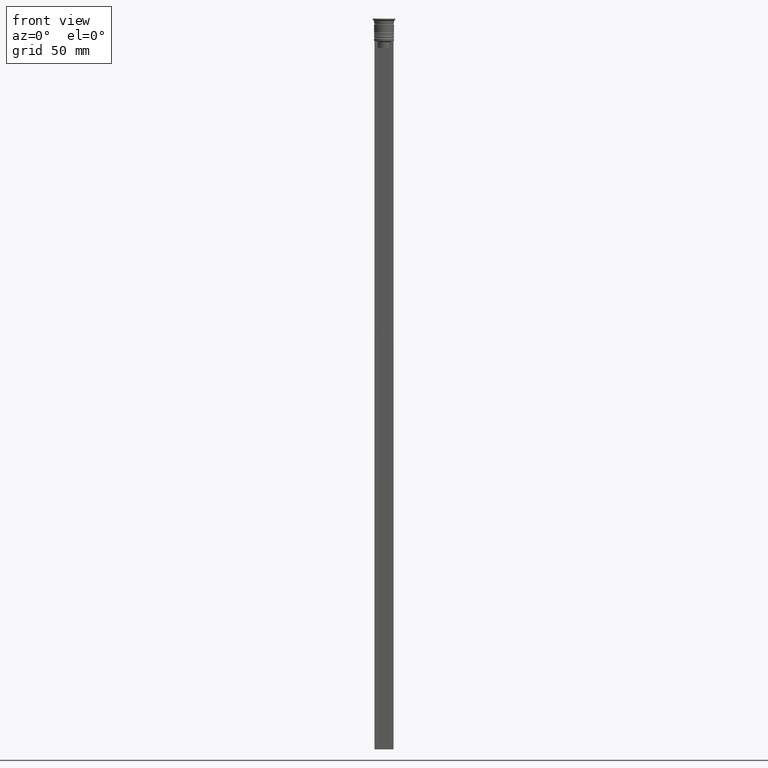
[diagram: clean part render]
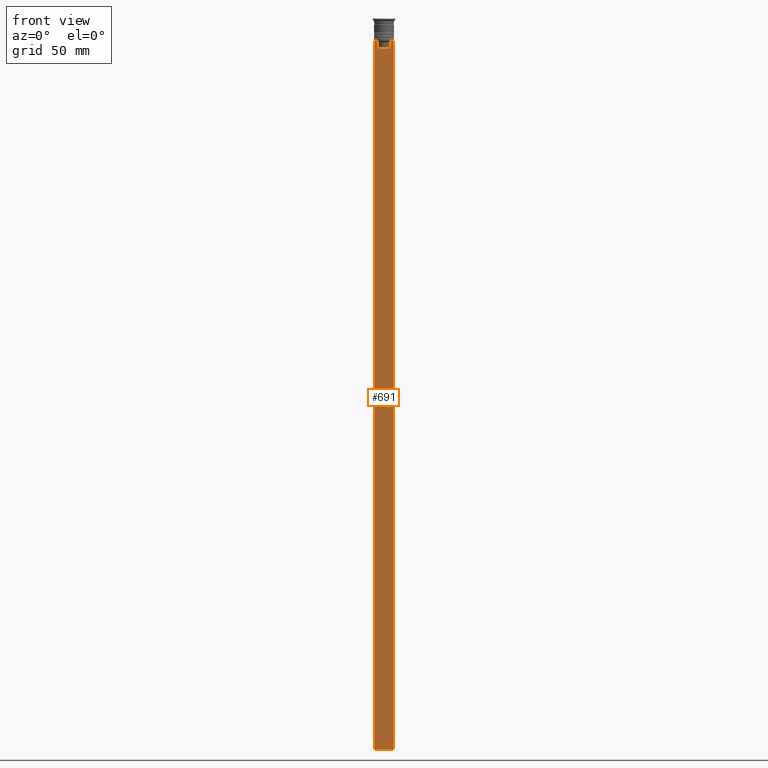
[diagram: same view with one face highlighted and labeled with its STEP entity id]
A machine part, front view. The second image highlights one B-rep face of the part: STEP entity #691.
In plain terms, the highlighted planar face has unit normal (0, -1, -0).
Its self-contained STEP definition (entity closure, byte-faithful):
#25 = CARTESIAN_POINT ( 'NONE',  ( -2.602402735934616906, -0.5000000000000004441, 0.000000000000000000 ) ) ;
#45 = ORIENTED_EDGE ( 'NONE', *, *, #926, .F. ) ;
#79 = CARTESIAN_POINT ( 'NONE',  ( 2.602402735934616906, -0.5000000000000004441, -10.00000000000000178 ) ) ;
#90 = CARTESIAN_POINT ( 'NONE',  ( -2.771866350855961336, -0.5000000000000004441, -9.833580160334840059 ) ) ;
#96 = CARTESIAN_POINT ( 'NONE',  ( -2.602402735934616906, -0.5000000000000004441, -12.50000000000000000 ) ) ;
#99 = DIRECTION ( 'NONE',  ( 0.000000000000000000, 0.000000000000000000, -1.000000000000000000 ) ) ;
#132 = CARTESIAN_POINT ( 'NONE',  ( 3.110064308016796453, -0.5000000000000004441, -9.500000000000000000 ) ) ;
#143 = CARTESIAN_POINT ( 'NONE',  ( 2.602402735934616906, -0.5000000000000004441, -12.50000000000000000 ) ) ;
#172 = EDGE_CURVE ( 'NONE', #1688, #1894, #853, .T. ) ;
#197 = LINE ( 'NONE', #2043, #1722 ) ;
#210 = LINE ( 'NONE', #25, #1306 ) ;
#224 = LINE ( 'NONE', #1532, #292 ) ;
#287 = VECTOR ( 'NONE', #1035, 1000.000000000000000 ) ;
#292 = VECTOR ( 'NONE', #2056, 1000.000000000000000 ) ;
#298 = CARTESIAN_POINT ( 'NONE',  ( -3.110064308016796453, -0.5000000000000004441, -9.500000000000000000 ) ) ;
#386 = EDGE_CURVE ( 'NONE', #1214, #1443, #197, .T. ) ;
#511 = EDGE_CURVE ( 'NONE', #1328, #1263, #832, .T. ) ;
#516 = CARTESIAN_POINT ( 'NONE',  ( 4.000000000000005329, -0.5000000000000004441, -1.437742251701450202 ) ) ;
#616 = CARTESIAN_POINT ( 'NONE',  ( -2.602402735934616906, -0.5000000000000004441, -10.00000000000000178 ) ) ;
#632 = ORIENTED_EDGE ( 'NONE', *, *, #386, .F. ) ;
#641 = CARTESIAN_POINT ( 'NONE',  ( -2.602402735934616906, -0.5000000000000004441, -10.00000000000000178 ) ) ;
#657 = LINE ( 'NONE', #867, #287 ) ;
#675 = ORIENTED_EDGE ( 'NONE', *, *, #1751, .T. ) ;
#691 = ADVANCED_FACE ( 'NONE', ( #1980 ), #934, .T. ) ;
#694 = VERTEX_POINT ( 'NONE', #143 ) ;
#715 = CARTESIAN_POINT ( 'NONE',  ( -3.999999999999994671, -0.5000000000000004441, -9.500000000000000000 ) ) ;
#832 = LINE ( 'NONE', #1723, #1219 ) ;
#853 = B_SPLINE_CURVE_WITH_KNOTS ( 'NONE', 3,
 ( #1198, #1553, #1381, #1569 ),
 .UNSPECIFIED., .F., .F.,
 ( 4, 4 ),
 ( 0.01295151922336847811, 0.01367164596165162602 ),
 .UNSPECIFIED. ) ;
#867 = CARTESIAN_POINT ( 'NONE',  ( 0.000000000000000000, -0.5000000000000004441, -12.50000000000000000 ) ) ;
#926 = EDGE_CURVE ( 'NONE', #2234, #694, #657, .T. ) ;
#928 = ORIENTED_EDGE ( 'NONE', *, *, #172, .F. ) ;
#934 = PLANE ( 'NONE',  #1068 ) ;
#999 = CARTESIAN_POINT ( 'NONE',  ( 4.000000000000005329, -0.5000000000000004441, -9.500000000000000000 ) ) ;
#1010 = CARTESIAN_POINT ( 'NONE',  ( -3.110064308016796453, -0.5000000000000004441, -9.500000000000000000 ) ) ;
#1035 = DIRECTION ( 'NONE',  ( 1.000000000000000000, 0.000000000000000000, 0.000000000000000000 ) ) ;
#1068 = AXIS2_PLACEMENT_3D ( 'NONE', #516, #2040, #1615 ) ;
#1116 = CARTESIAN_POINT ( 'NONE',  ( 4.000000000000005329, -0.5000000000000004441, -9.500000000000000000 ) ) ;
#1164 = EDGE_CURVE ( 'NONE', #1894, #1328, #1662, .T. ) ;
#1168 = CARTESIAN_POINT ( 'NONE',  ( 4.000000000000005329, -0.5000000000000004441, -309.5000000000000000 ) ) ;
#1198 = CARTESIAN_POINT ( 'NONE',  ( 2.602402735934616906, -0.5000000000000004441, -10.00000000000000178 ) ) ;
#1204 = DIRECTION ( 'NONE',  ( -1.000000000000000000, 0.000000000000000000, 0.000000000000000000 ) ) ;
#1214 = VERTEX_POINT ( 'NONE', #715 ) ;
#1219 = VECTOR ( 'NONE', #99, 1000.000000000000000 ) ;
#1232 = CARTESIAN_POINT ( 'NONE',  ( 4.000000000000005329, -0.5000000000000004441, -309.5000000000000000 ) ) ;
#1235 = ORIENTED_EDGE ( 'NONE', *, *, #511, .F. ) ;
#1263 = VERTEX_POINT ( 'NONE', #1168 ) ;
#1290 = LINE ( 'NONE', #2202, #1531 ) ;
#1306 = VECTOR ( 'NONE', #1495, 1000.000000000000000 ) ;
#1328 = VERTEX_POINT ( 'NONE', #999 ) ;
#1381 = CARTESIAN_POINT ( 'NONE',  ( 2.941045828809988549, -0.5000000000000004441, -9.666875663357577864 ) ) ;
#1441 = ORIENTED_EDGE ( 'NONE', *, *, #2255, .F. ) ;
#1443 = VERTEX_POINT ( 'NONE', #298 ) ;
#1467 = EDGE_CURVE ( 'NONE', #1443, #2192, #1705, .T. ) ;
#1470 = CARTESIAN_POINT ( 'NONE',  ( -3.999999999999994671, -0.5000000000000004441, -309.5000000000000000 ) ) ;
#1495 = DIRECTION ( 'NONE',  ( 0.000000000000000000, 0.000000000000000000, -1.000000000000000000 ) ) ;
#1531 = VECTOR ( 'NONE', #1817, 1000.000000000000000 ) ;
#1532 = CARTESIAN_POINT ( 'NONE',  ( -3.999999999999994671, -0.5000000000000004441, -1.437742251701450202 ) ) ;
#1553 = CARTESIAN_POINT ( 'NONE',  ( 2.771864055700302476, -0.5000000000000004441, -9.833582414266679450 ) ) ;
#1555 = VERTEX_POINT ( 'NONE', #1470 ) ;
#1569 = CARTESIAN_POINT ( 'NONE',  ( 3.110064308016796453, -0.5000000000000004441, -9.500000000000000000 ) ) ;
#1577 = LINE ( 'NONE', #1232, #2348 ) ;
#1615 = DIRECTION ( 'NONE',  ( 0.000000000000000000, 0.000000000000000000, -1.000000000000000000 ) ) ;
#1651 = EDGE_CURVE ( 'NONE', #2192, #2234, #210, .T. ) ;
#1662 = LINE ( 'NONE', #1116, #1911 ) ;
#1688 = VERTEX_POINT ( 'NONE', #79 ) ;
#1705 = B_SPLINE_CURVE_WITH_KNOTS ( 'NONE', 3,
 ( #1010, #1737, #90, #641 ),
 .UNSPECIFIED., .F., .F.,
 ( 4, 4 ),
 ( 0.005378271293598281544, 0.006090816219556000749 ),
 .UNSPECIFIED. ) ;
#1718 = ORIENTED_EDGE ( 'NONE', *, *, #1966, .F. ) ;
#1722 = VECTOR ( 'NONE', #1864, 1000.000000000000000 ) ;
#1723 = CARTESIAN_POINT ( 'NONE',  ( 4.000000000000005329, -0.5000000000000004441, -1.437742251701450202 ) ) ;
#1737 = CARTESIAN_POINT ( 'NONE',  ( -2.941047749529104749, -0.5000000000000004441, -9.666873766989334982 ) ) ;
#1751 = EDGE_CURVE ( 'NONE', #1214, #1555, #224, .T. ) ;
#1817 = DIRECTION ( 'NONE',  ( -0.000000000000000000, -0.000000000000000000, 1.000000000000000000 ) ) ;
#1832 = ORIENTED_EDGE ( 'NONE', *, *, #1467, .F. ) ;
#1855 = DIRECTION ( 'NONE',  ( 1.000000000000000000, 0.000000000000000000, 0.000000000000000000 ) ) ;
#1864 = DIRECTION ( 'NONE',  ( 1.000000000000000000, 0.000000000000000000, 0.000000000000000000 ) ) ;
#1894 = VERTEX_POINT ( 'NONE', #132 ) ;
#1911 = VECTOR ( 'NONE', #1855, 1000.000000000000000 ) ;
#1926 = ORIENTED_EDGE ( 'NONE', *, *, #1651, .F. ) ;
#1966 = EDGE_CURVE ( 'NONE', #694, #1688, #1290, .T. ) ;
#1980 = FACE_OUTER_BOUND ( 'NONE', #2335, .T. ) ;
#2040 = DIRECTION ( 'NONE',  ( 0.000000000000000000, -1.000000000000000000, -0.000000000000000000 ) ) ;
#2043 = CARTESIAN_POINT ( 'NONE',  ( 4.000000000000005329, -0.5000000000000004441, -9.500000000000000000 ) ) ;
#2056 = DIRECTION ( 'NONE',  ( 0.000000000000000000, 0.000000000000000000, -1.000000000000000000 ) ) ;
#2192 = VERTEX_POINT ( 'NONE', #616 ) ;
#2202 = CARTESIAN_POINT ( 'NONE',  ( 2.602402735934616906, -0.5000000000000004441, 0.000000000000000000 ) ) ;
#2234 = VERTEX_POINT ( 'NONE', #96 ) ;
#2255 = EDGE_CURVE ( 'NONE', #1263, #1555, #1577, .T. ) ;
#2286 = ORIENTED_EDGE ( 'NONE', *, *, #1164, .F. ) ;
#2335 = EDGE_LOOP ( 'NONE', ( #1832, #632, #675, #1441, #1235, #2286, #928, #1718, #45, #1926 ) ) ;
#2348 = VECTOR ( 'NONE', #1204, 1000.000000000000000 ) ;